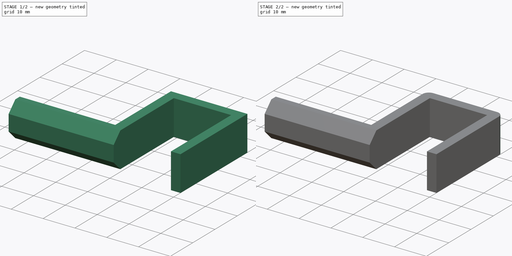
[diagram: build sequence overview — one tinted view per stage of 2, left to right]
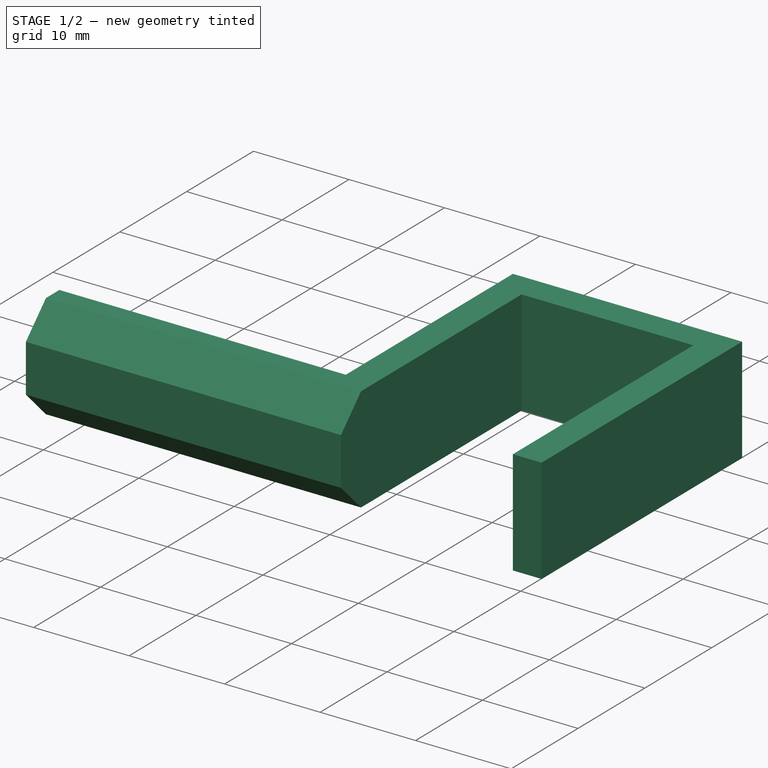
[diagram: stage 1 of 2 — iso view after this stage's code; geometry added in this stage tinted green]
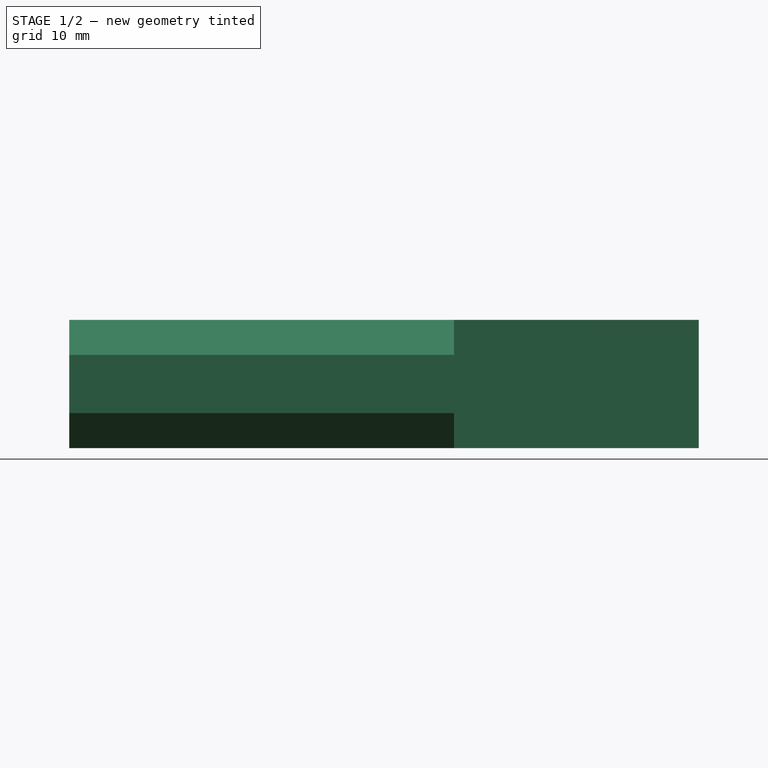
[diagram: stage 1 of 2 — front view after this stage's code; geometry added in this stage tinted green]
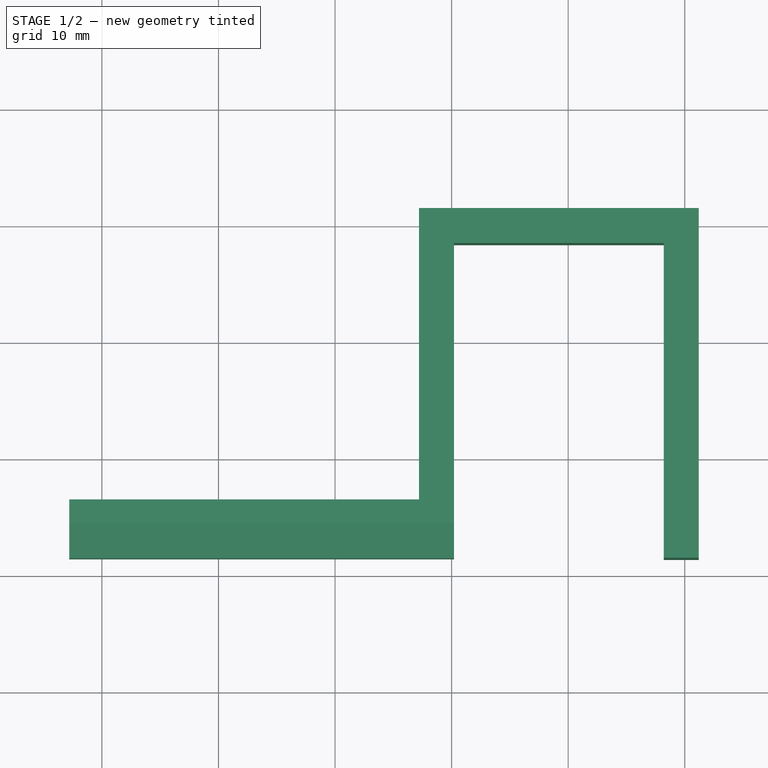
[diagram: stage 1 of 2 — top view after this stage's code; geometry added in this stage tinted green]
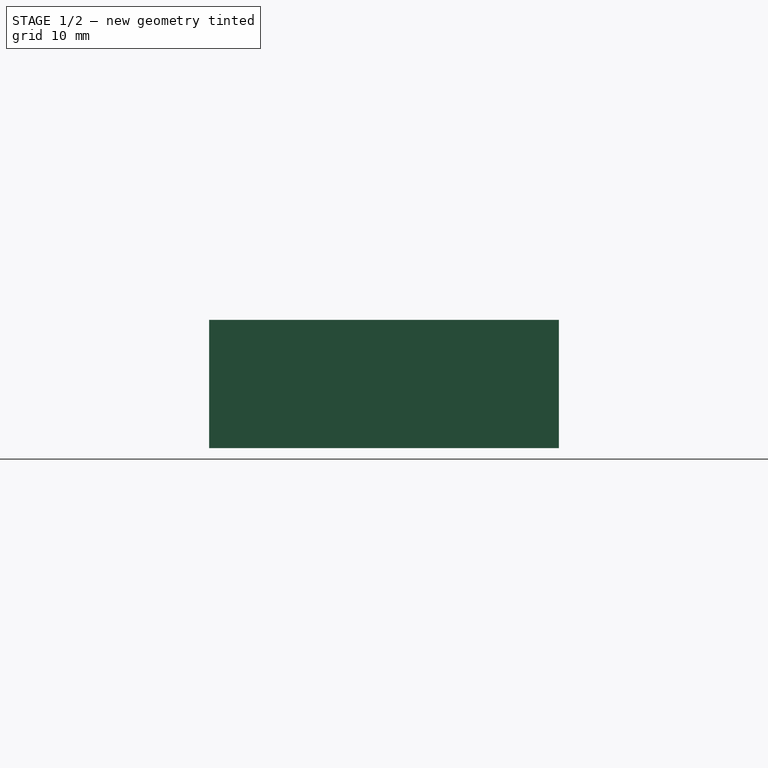
[diagram: stage 1 of 2 — right view after this stage's code; geometry added in this stage tinted green]
FCSTD DOCUMENT  (FreeCAD 0.18.4R)
Label: Gancho
License: All rights reserved
LicenseURL: http://en.wikipedia.org/wiki/All_rights_reserved
objects: Sketcher::SketchObject×1, PartDesign::Pad×1, PartDesign::Chamfer×1, PartDesign::Fillet×1, PartDesign::Body×1
note: 6 computed .brp shape members not serialized (recipe doc carries the construction recipe); baked Part::Feature solids carry a one-line shape summary decoded from their .brp

FEATURE [Sketcher::SketchObject] Sketch
  MapMode = 5
  Support = -> [XY_Plane]
  sketch-geometry (10):
    g0: LineSegment StartX=-22.8005 StartY=-3.59902 StartZ=0 EndX=-22.8005 EndY=-8.59902 EndZ=0
    g1: LineSegment StartX=-22.8005 StartY=-8.59902 StartZ=0 EndX=10.1995 EndY=-8.59902 EndZ=0
    g2: LineSegment StartX=10.1995 StartY=-8.59902 StartZ=0 EndX=10.1995 EndY=18.401 EndZ=0
    g3: LineSegment StartX=10.1995 StartY=18.401 StartZ=0 EndX=28.1995 EndY=18.401 EndZ=0
    g4: LineSegment StartX=28.1995 StartY=18.401 StartZ=0 EndX=28.1995 EndY=-8.59902 EndZ=0
    g5: LineSegment StartX=28.1995 StartY=-8.59902 StartZ=0 EndX=31.1995 EndY=-8.59902 EndZ=0
    g6: LineSegment StartX=31.1995 StartY=-8.59902 StartZ=0 EndX=31.1995 EndY=21.401 EndZ=0
    g7: LineSegment StartX=31.1995 StartY=21.401 StartZ=0 EndX=7.19953 EndY=21.401 EndZ=0
    g8: LineSegment StartX=7.19953 StartY=21.401 StartZ=0 EndX=7.19953 EndY=-3.59902 EndZ=0
    g9: LineSegment StartX=7.19953 StartY=-3.59902 StartZ=0 EndX=-22.8005 EndY=-3.59902 EndZ=0
  constraints (28):
    c: Coincident(g0,g1)
    c: Coincident(g1,g2)
    c: Coincident(g2,g3)
    c: Coincident(g3,g4)
    c: Coincident(g4,g5)
    c: Coincident(g5,g6)
    c: Coincident(g6,g7)
    c: Coincident(g7,g8)
    c: Coincident(g8,g9)
    c: Coincident(g9,g0)
    c: Horizontal(g9)
    c: Horizontal(g1)
    c: Horizontal(g5)
    c: Horizontal(g3)
    c: Horizontal(g7)
    c: Vertical(g0)
    c: Vertical(g8)
    c: Vertical(g2)
    c: Vertical(g4)
    c: Vertical(g6)
    c: Equal(g2,g4)
    c: Distance(g5) = 3
    c: DistanceX(g8,g1) = 3
    c: DistanceY(g0,g0) = 5
    c: Distance(g6) = 30
    c: DistanceY(g3,g6) = 3
    c: Distance(g3) = 18
    c: Distance(g9) = 30
FEATURE [PartDesign::Pad] Pad
  Length = 11
  Length2 = 100
  Profile = -> Sketch
  Type = 0
FEATURE [PartDesign::Chamfer] Chamfer
  Base = -> Pad [Edge6,Edge7]
  BaseFeature = -> Pad
  Size = 3
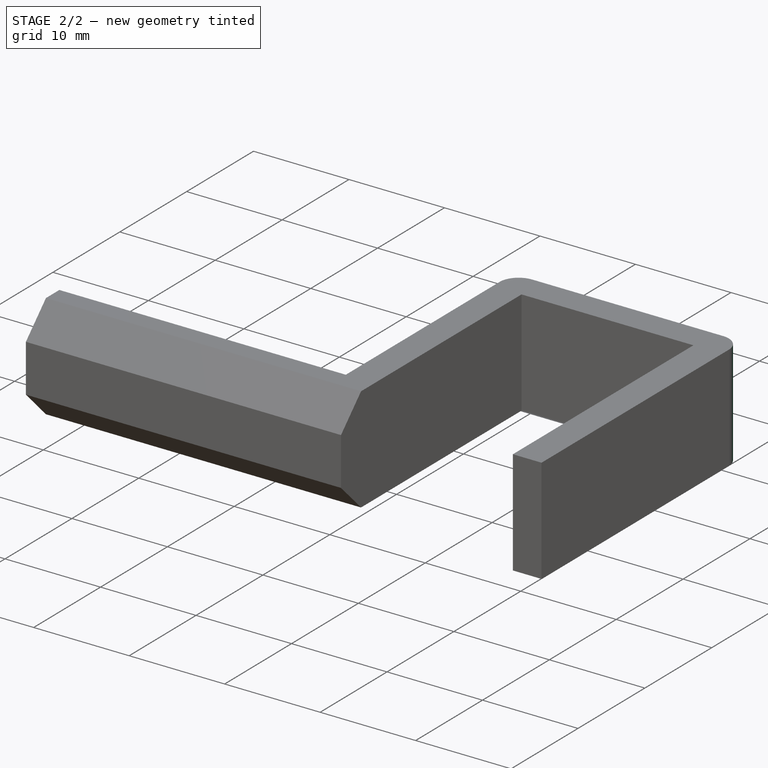
[diagram: stage 2 of 2 — iso view after this stage's code; geometry added in this stage tinted green]
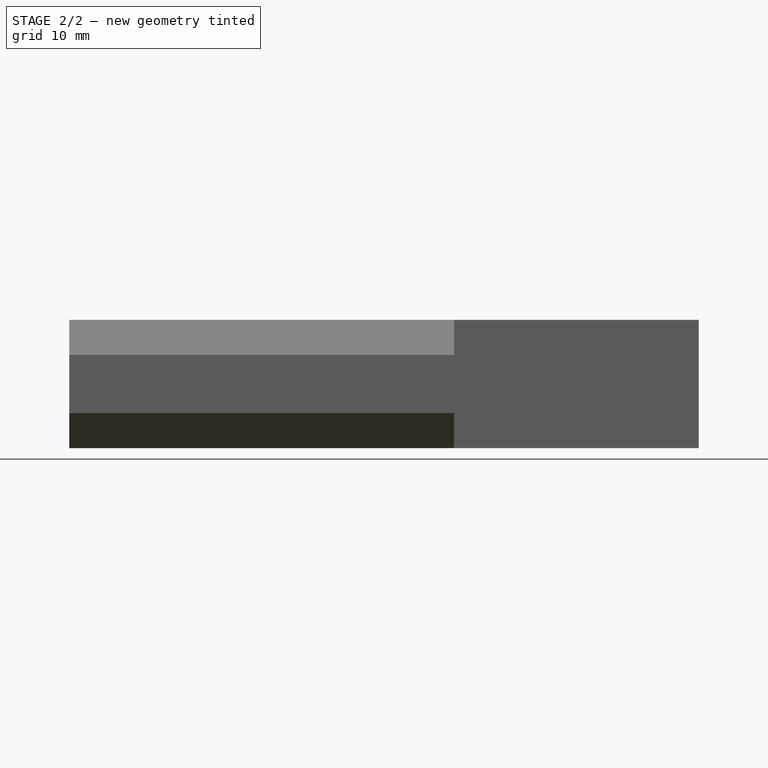
[diagram: stage 2 of 2 — front view after this stage's code; geometry added in this stage tinted green]
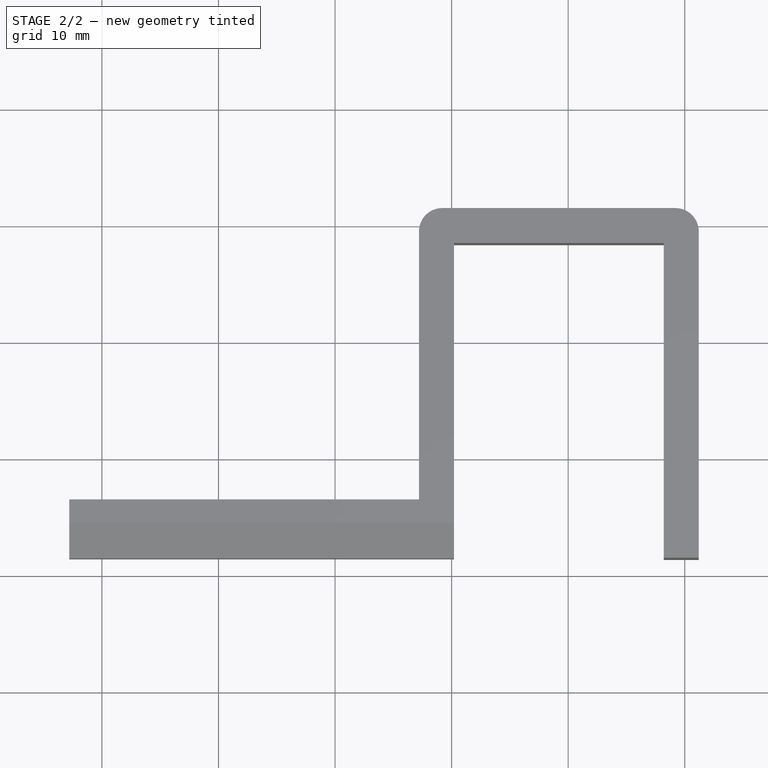
[diagram: stage 2 of 2 — top view after this stage's code; geometry added in this stage tinted green]
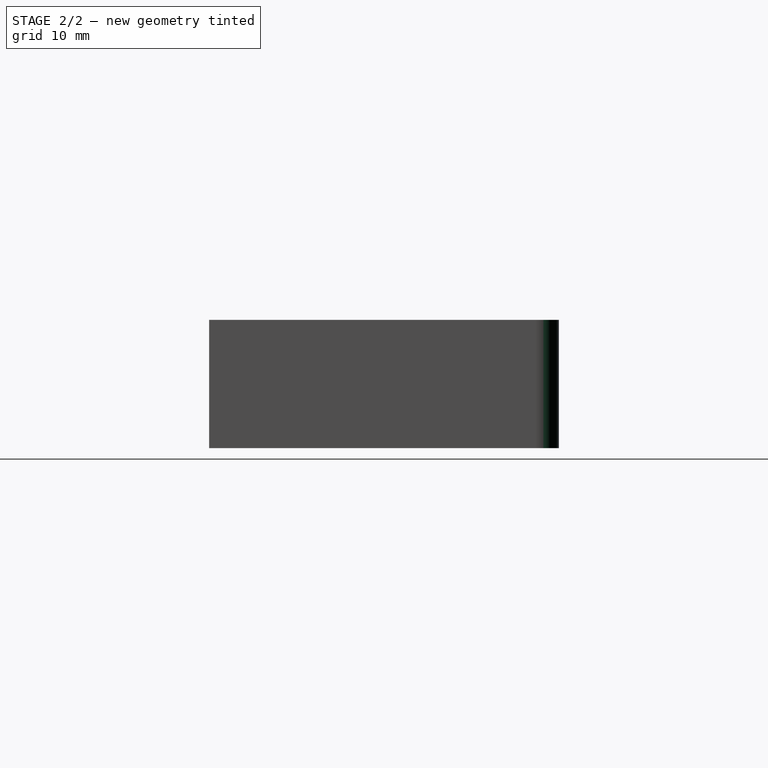
[diagram: stage 2 of 2 — right view after this stage's code; geometry added in this stage tinted green]
FEATURE [PartDesign::Fillet] Fillet
  Base = -> Chamfer [Edge34,Edge32]
  BaseFeature = -> Chamfer
  Radius = 2
FEATURE [PartDesign::Body] Body
  Group = -> [Sketch,Pad,Chamfer,Fillet]
  Origin = -> Origin
  Tip = -> Fillet
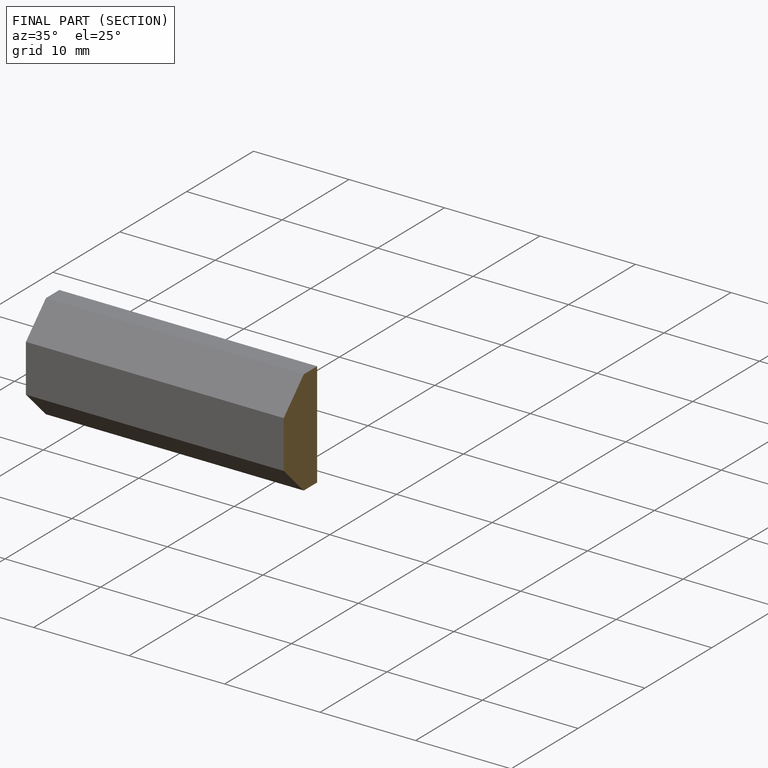
[diagram: finished part — half-section view (interior)]
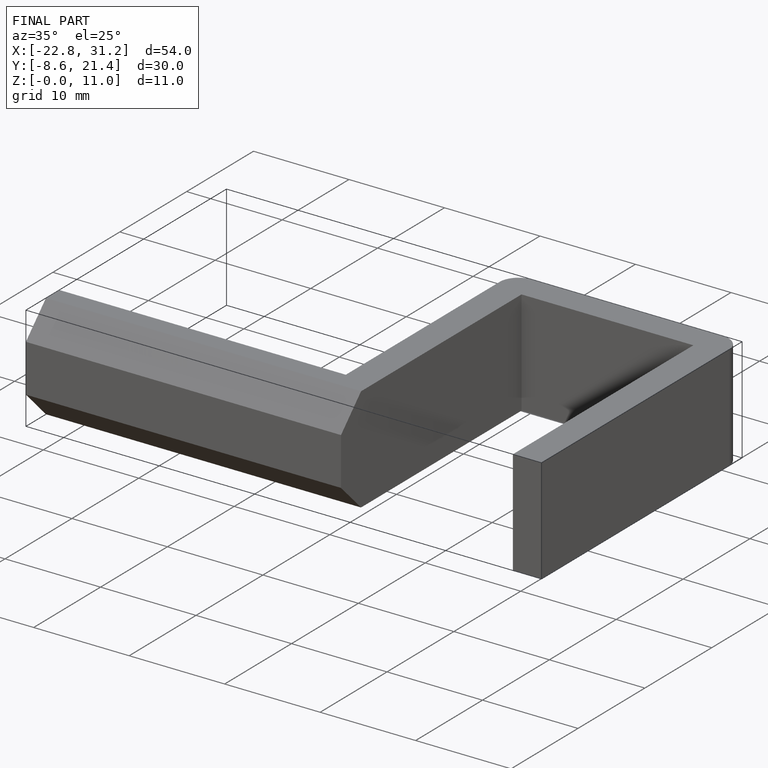
[diagram: finished part — iso view with bounding-box wireframe]
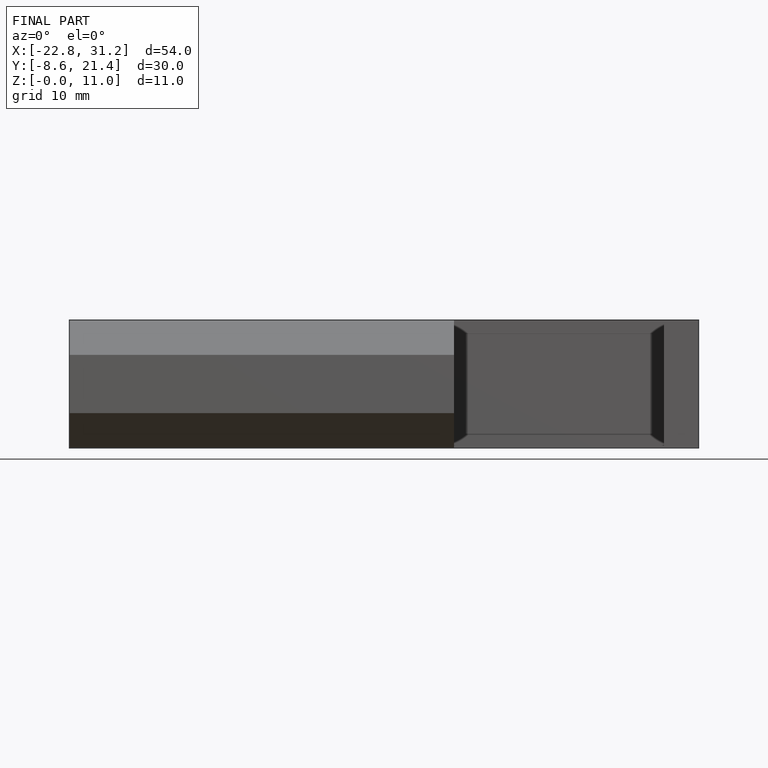
[diagram: finished part — front view with bounding-box wireframe]
